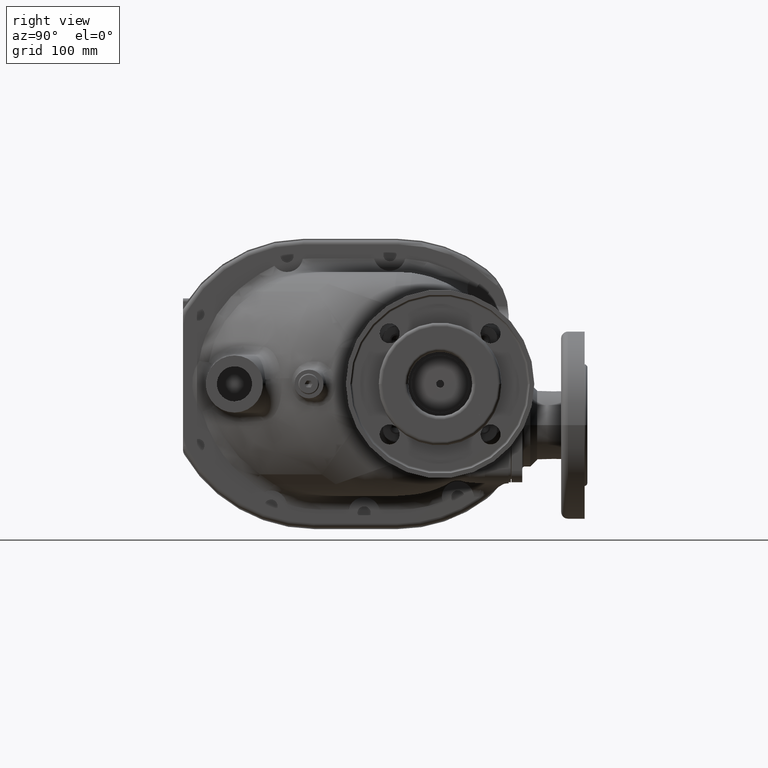
[diagram: clean part render]
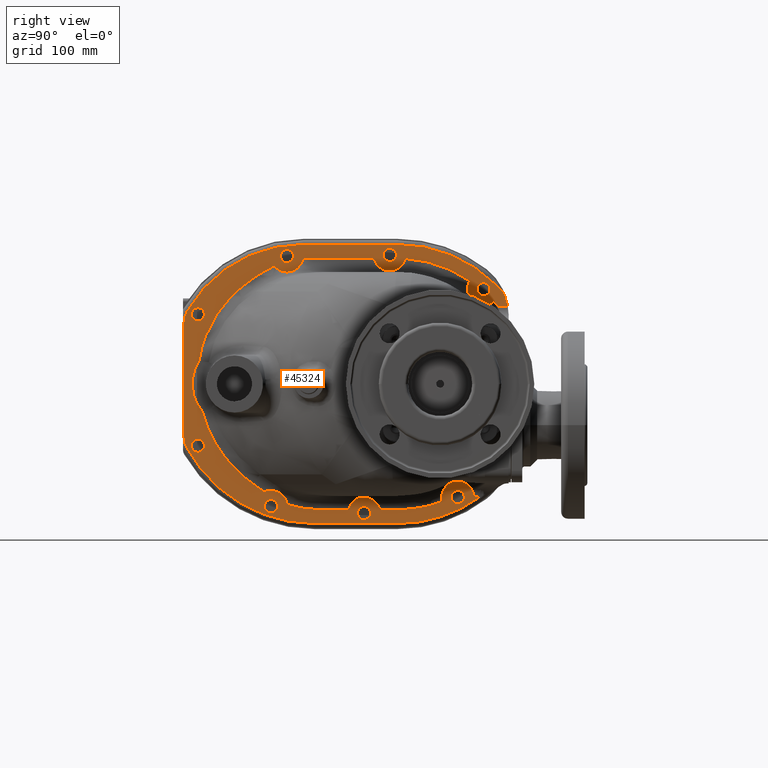
[diagram: same view with one face highlighted and labeled with its STEP entity id]
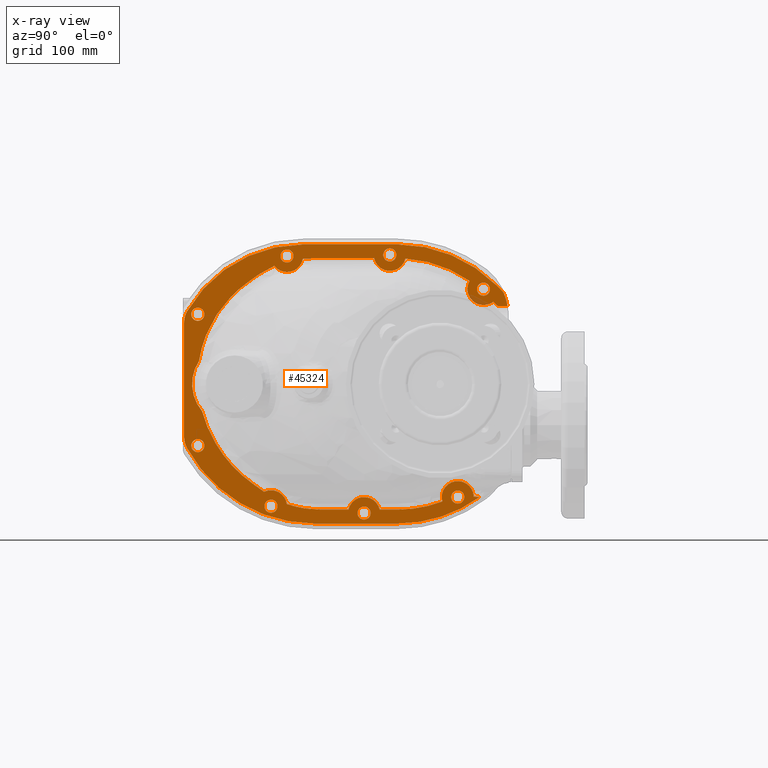
[diagram: x-ray of the same camera — body ghosted, the highlighted face saturated]
A machine part, right view. The second image highlights one B-rep face of the part: STEP entity #45324.
The next image is the same camera in x-ray: the body ghosted, the highlighted face saturated — about 1% of this face is hidden behind the body in this view.
In plain terms, the highlighted planar face has unit normal (-1, 0, 0).
Its self-contained STEP definition (entity closure, byte-faithful):
#565=CARTESIAN_POINT('',(-7.5E0,2.605E2,-1.09E2));
#566=DIRECTION('',(1.E0,0.E0,0.E0));
#567=DIRECTION('',(0.E0,9.995150691828E-1,3.113882586855E-2));
#568=AXIS2_PLACEMENT_3D('',#565,#566,#567);
#641=CARTESIAN_POINT('',(-7.5E0,2.52E2,4.824946351684E1));
#642=DIRECTION('',(-1.E0,0.E0,0.E0));
#643=DIRECTION('',(0.E0,9.053101980282E-1,4.247510392526E-1));
#644=AXIS2_PLACEMENT_3D('',#641,#642,#643);
#646=DIRECTION('',(0.E0,1.E0,-8.383138809149E-14));
#647=VECTOR('',#646,7.289235770339E0);
#648=CARTESIAN_POINT('',(-7.5E0,2.968061290742E2,5.8E1));
#649=LINE('',#648,#647);
#650=CARTESIAN_POINT('',(-7.5E0,2.946848147033E2,5.887867715788E1));
#651=CARTESIAN_POINT('',(-7.5E0,2.947215369038E2,5.884195959274E1));
#652=CARTESIAN_POINT('',(-7.5E0,2.947969013468E2,5.877042571151E1));
#653=CARTESIAN_POINT('',(-7.5E0,2.949159030242E2,5.866868146666E1));
#654=CARTESIAN_POINT('',(-7.5E0,2.950403628705E2,5.857302313117E1));
#655=CARTESIAN_POINT('',(-7.5E0,2.951699512089E2,5.848380919034E1));
#656=CARTESIAN_POINT('',(-7.5E0,2.953042625594E2,5.840141383229E1));
#657=CARTESIAN_POINT('',(-7.5E0,2.954428648791E2,5.832609705779E1));
#658=CARTESIAN_POINT('',(-7.5E0,2.955853164017E2,5.825811762193E1));
#659=CARTESIAN_POINT('',(-7.5E0,2.957311720309E2,5.819772202284E1));
#660=CARTESIAN_POINT('',(-7.5E0,2.958799622555E2,5.814509769357E1));
#661=CARTESIAN_POINT('',(-7.5E0,2.960311972411E2,5.810038761986E1));
#662=CARTESIAN_POINT('',(-7.5E0,2.961843812237E2,5.806372230608E1));
#663=CARTESIAN_POINT('',(-7.5E0,2.963390226770E2,5.803522021049E1));
#664=CARTESIAN_POINT('',(-7.5E0,2.964945608931E2,5.801488805460E1));
#665=CARTESIAN_POINT('',(-7.5E0,2.966505095656E2,5.800270693449E1));
#666=CARTESIAN_POINT('',(-7.5E0,2.967542641672E2,5.800000332396E1));
#667=CARTESIAN_POINT('',(-7.5E0,2.968061290742E2,5.8E1));
#669=DIRECTION('',(0.E0,7.071067812026E-1,-7.071067811705E-1));
#670=VECTOR('',#669,4.354109498595E0);
#671=CARTESIAN_POINT('',(-7.5E0,2.916059943507E2,6.195749751030E1));
#672=LINE('',#671,#670);
#673=CARTESIAN_POINT('',(-7.5E0,2.08E2,-1.E1));
#674=DIRECTION('',(-1.E0,0.E0,0.E0));
#675=DIRECTION('',(0.E0,6.026719967228E-2,9.981822802693E-1));
#676=AXIS2_PLACEMENT_3D('',#673,#674,#675);
#678=DIRECTION('',(0.E0,1.E0,0.E0));
#679=VECTOR('',#678,5.352367977882E1);
#680=CARTESIAN_POINT('',(-7.5E0,1.338015258900E2,1.E2));
#681=LINE('',#680,#679);
#682=CARTESIAN_POINT('',(-7.500001249023E0,1.247867443806E2,9.956572816166E1));
#683=CARTESIAN_POINT('',(-7.500002001521E0,1.253834990823E2,9.962349392321E1));
#684=CARTESIAN_POINT('',(-7.499999070109E0,1.265787724287E2,9.972751369882E1));
#685=CARTESIAN_POINT('',(-7.500000252338E0,1.283771105625E2,9.984903031643E1));
#686=CARTESIAN_POINT('',(-7.499999920539E0,1.301804500625E2,9.993601271981E1));
#687=CARTESIAN_POINT('',(-7.500000065505E0,1.319885102297E2,9.998833140881E1));
#688=CARTESIAN_POINT('',(-7.499999900129E0,1.331966996144E2,9.999999929373E1));
#689=CARTESIAN_POINT('',(-7.5E0,1.338015258900E2,1.E2));
#691=CARTESIAN_POINT('',(-7.5E0,8.680152588999E1,8.623401871576E1));
#692=CARTESIAN_POINT('',(-7.499999769050E0,8.721706141722E1,8.652784482507E1));
#693=CARTESIAN_POINT('',(-7.500000107219E0,8.806362993374E1,8.711089682195E1));
#694=CARTESIAN_POINT('',(-7.499999971158E0,8.938111581144E1,8.797079543495E1));
#695=CARTESIAN_POINT('',(-7.500000008150E0,9.074592682372E1,8.881424804455E1));
#696=CARTESIAN_POINT('',(-7.499999996242E0,9.215793135502E1,8.963976987502E1));
#697=CARTESIAN_POINT('',(-7.500000006880E0,9.361707920826E1,9.044574287931E1));
#698=CARTESIAN_POINT('',(-7.499999976236E0,9.512315082272E1,9.123062061691E1));
#699=CARTESIAN_POINT('',(-7.500000088175E0,9.667551394764E1,9.199271760760E1));
#700=CARTESIAN_POINT('',(-7.499999671066E0,9.827371265851E1,9.273033647384E1));
#701=CARTESIAN_POINT('',(-7.500000708731E0,9.936887186462E1,9.320453222904E1));
#702=CARTESIAN_POINT('',(-7.500001569578E0,9.992405085512E1,9.343709450361E1));
#704=DIRECTION('',(0.E0,8.164965809277E-1,5.773502691896E-1));
#705=VECTOR('',#704,1.180315603699E1);
#706=CARTESIAN_POINT('',(-7.5E0,7.716428934163E1,7.941946340052E1));
#707=LINE('',#706,#705);
#708=CARTESIAN_POINT('',(-7.500000043983E0,3.404119882552E1,1.026209656473E1));
#709=CARTESIAN_POINT('',(-7.499999920212E0,3.415255374576E1,1.099444632083E1));
#710=CARTESIAN_POINT('',(-7.500000037030E0,3.439131343353E1,1.245675980033E1));
#711=CARTESIAN_POINT('',(-7.499999990078E0,3.479765273544E1,1.464363266765E1));
#712=CARTESIAN_POINT('',(-7.500000002659E0,3.525189966886E1,1.682222520690E1));
#713=CARTESIAN_POINT('',(-7.499999999288E0,3.575385902976E1,1.899144663581E1));
#714=CARTESIAN_POINT('',(-7.500000000191E0,3.630331417313E1,2.115006120175E1));
#715=CARTESIAN_POINT('',(-7.499999999949E0,3.690005824715E1,2.329679924893E1));
#716=CARTESIAN_POINT('',(-7.500000000014E0,3.754388532264E1,2.543096083541E1));
#717=CARTESIAN_POINT('',(-7.499999999996E0,3.823463088500E1,2.755200379519E1));
#718=CARTESIAN_POINT('',(-7.500000000001E0,3.897213777241E1,2.965924444235E1));
#719=CARTESIAN_POINT('',(-7.5E0,3.975617179082E1,3.175173943339E1));
#720=CARTESIAN_POINT('',(-7.5E0,4.058654089373E1,3.382858477898E1));
#721=CARTESIAN_POINT('',(-7.5E0,4.146288184827E1,3.588875424601E1));
#722=CARTESIAN_POINT('',(-7.5E0,4.238477279288E1,3.793117490445E1));
#723=CARTESIAN_POINT('',(-7.5E0,4.335182520570E1,3.995482731708E1));
#724=CARTESIAN_POINT('',(-7.5E0,4.436373911524E1,4.195887094362E1));
#725=CARTESIAN_POINT('',(-7.5E0,4.542023632134E1,4.394241354128E1));
#726=CARTESIAN_POINT('',(-7.5E0,4.652094226587E1,4.590462761157E1));
#727=CARTESIAN_POINT('',(-7.5E0,4.766544410380E1,4.784469103730E1));
#728=CARTESIAN_POINT('',(-7.5E0,4.885336235149E1,4.976178189284E1));
#729=CARTESIAN_POINT('',(-7.5E0,5.008438401903E1,5.165516441657E1));
#730=CARTESIAN_POINT('',(-7.5E0,5.135824076170E1,5.352407655834E1));
#731=CARTESIAN_POINT('',(-7.5E0,5.267448838811E1,5.536768490484E1));
#732=CARTESIAN_POINT('',(-7.5E0,5.403258768537E1,5.718511445272E1));
#733=CARTESIAN_POINT('',(-7.5E0,5.543202204657E1,5.897548022839E1));
#734=CARTESIAN_POINT('',(-7.5E0,5.687231501021E1,6.073794221993E1));
#735=CARTESIAN_POINT('',(-7.5E0,5.835300877063E1,6.247163367803E1));
#736=CARTESIAN_POINT('',(-7.499999999999E0,5.987360251518E1,6.417570264861E1));
#737=CARTESIAN_POINT('',(-7.500000000002E0,6.143350439625E1,6.584937681464E1));
#738=CARTESIAN_POINT('',(-7.499999999991E0,6.303209558071E1,6.749181841843E1));
#739=CARTESIAN_POINT('',(-7.500000000035E0,6.466892534145E1,6.910235455752E1));
#740=CARTESIAN_POINT('',(-7.499999999871E0,6.634370459193E1,7.068043415302E1));
#741=CARTESIAN_POINT('',(-7.500000000481E0,6.805618970931E1,7.222545085397E1));
#742=CARTESIAN_POINT('',(-7.499999998207E0,6.980573676917E1,7.373662833953E1));
#743=CARTESIAN_POINT('',(-7.500000006693E0,7.159155272849E1,7.521312480952E1));
#744=CARTESIAN_POINT('',(-7.499999975021E0,7.341283979956E1,7.665406699229E1));
#745=CARTESIAN_POINT('',(-7.500000093223E0,7.526891008142E1,7.805864880576E1));
#746=CARTESIAN_POINT('',(-7.499999799133E0,7.652869459305E1,7.897001893988E1));
#747=CARTESIAN_POINT('',(-7.5E0,7.716428934163E1,7.941946340052E1));
#749=CARTESIAN_POINT('',(-7.5E0,6.5E1,-1.E1));
#750=DIRECTION('',(-1.E0,0.E0,0.E0));
#751=DIRECTION('',(0.E0,-7.657252250524E-1,-6.431678472362E-1));
#752=AXIS2_PLACEMENT_3D('',#749,#750,#751);
#754=CARTESIAN_POINT('',(-7.5E0,8.139078664974E1,-9.758442920979E1));
#755=CARTESIAN_POINT('',(-7.499999807360E0,8.071779659205E1,-9.710854353100E1));
#756=CARTESIAN_POINT('',(-7.500000089404E0,7.938336360703E1,-9.614385106179E1));
#757=CARTESIAN_POINT('',(-7.499999976044E0,7.741574564495E1,-9.465792645465E1));
#758=CARTESIAN_POINT('',(-7.500000006419E0,7.548340991620E1,-9.313430230436E1));
#759=CARTESIAN_POINT('',(-7.499999998280E0,7.358709919754E1,-9.157379737607E1));
#760=CARTESIAN_POINT('',(-7.500000000461E0,7.172766104714E1,-8.997730131711E1));
#761=CARTESIAN_POINT('',(-7.499999999877E0,6.990596992908E1,-8.834569773605E1));
#762=CARTESIAN_POINT('',(-7.500000000033E0,6.812255939487E1,-8.667970140554E1));
#763=CARTESIAN_POINT('',(-7.499999999991E0,6.637764115573E1,-8.497983647414E1));
#764=CARTESIAN_POINT('',(-7.500000000002E0,6.467149675618E1,-8.324659347613E1));
#765=CARTESIAN_POINT('',(-7.499999999999E0,6.300471131668E1,-8.148074220872E1));
#766=CARTESIAN_POINT('',(-7.5E0,6.137790017729E1,-7.968306231474E1));
#767=CARTESIAN_POINT('',(-7.5E0,5.979167129408E1,-7.785437662730E1));
#768=CARTESIAN_POINT('',(-7.5E0,5.824663647802E1,-7.599568500683E1));
#769=CARTESIAN_POINT('',(-7.5E0,5.674342561274E1,-7.410799142175E1));
#770=CARTESIAN_POINT('',(-7.5E0,5.528248297537E1,-7.219206977179E1));
#771=CARTESIAN_POINT('',(-7.5E0,5.386417382900E1,-7.024854568047E1));
#772=CARTESIAN_POINT('',(-7.5E0,5.248890285528E1,-6.827805096936E1));
#773=CARTESIAN_POINT('',(-7.5E0,5.115706208580E1,-6.628144967581E1));
#774=CARTESIAN_POINT('',(-7.5E0,4.986904742437E1,-6.425957860103E1));
#775=CARTESIAN_POINT('',(-7.5E0,4.862528719004E1,-6.221329314570E1));
#776=CARTESIAN_POINT('',(-7.5E0,4.742626663401E1,-6.014353358104E1));
#777=CARTESIAN_POINT('',(-7.5E0,4.627247754931E1,-5.805120397206E1));
#778=CARTESIAN_POINT('',(-7.499999999999E0,4.516433687625E1,-5.593726205081E1));
#779=CARTESIAN_POINT('',(-7.500000000002E0,4.410218913667E1,-5.380268799253E1));
#780=CARTESIAN_POINT('',(-7.499999999992E0,4.308641377455E1,-5.164849490034E1));
#781=CARTESIAN_POINT('',(-7.500000000028E0,4.211724451100E1,-4.947537446129E1));
#782=CARTESIAN_POINT('',(-7.499999999895E0,4.119488862206E1,-4.728388758525E1));
#783=CARTESIAN_POINT('',(-7.500000000393E0,4.031959726079E1,-4.507454695423E1));
#784=CARTESIAN_POINT('',(-7.499999998535E0,3.949167442602E1,-4.284842603003E1));
#785=CARTESIAN_POINT('',(-7.500000005469E0,3.871143128569E1,-4.060668012182E1));
#786=CARTESIAN_POINT('',(-7.499999979589E0,3.797919391642E1,-3.835047187535E1));
#787=CARTESIAN_POINT('',(-7.500000076173E0,3.729525415899E1,-3.608081553987E1));
#788=CARTESIAN_POINT('',(-7.499999835869E0,3.687179139588E1,-3.455978984623E1));
#789=CARTESIAN_POINT('',(-7.500000049433E0,3.666816657147E1,-3.379720904162E1));
#791=DIRECTION('',(0.E0,-8.164965809277E-1,5.773502691896E-1));
#792=VECTOR('',#791,1.173954736024E1);
#793=CARTESIAN_POINT('',(-7.5E0,9.097608693101E1,-1.043622600384E2));
#794=LINE('',#793,#792);
#795=CARTESIAN_POINT('',(-7.5E0,1.406231534380E2,-1.2E2));
#796=CARTESIAN_POINT('',(-7.499999925273E0,1.399212001907E2,-1.199999994282E2));
#797=CARTESIAN_POINT('',(-7.500000034681E0,1.385187761683E2,-1.199842900662E2));
#798=CARTESIAN_POINT('',(-7.499999990707E0,1.364181458024E2,-1.199136964253E2));
#799=CARTESIAN_POINT('',(-7.500000002490E0,1.343248463466E2,-1.197963652467E2));
#800=CARTESIAN_POINT('',(-7.499999999333E0,1.322415819330E2,-1.196326643582E2));
#801=CARTESIAN_POINT('',(-7.500000000179E0,1.301713362231E2,-1.194231290881E2));
#802=CARTESIAN_POINT('',(-7.499999999951E0,1.281173982498E2,-1.191684448800E2));
#803=CARTESIAN_POINT('',(-7.500000000018E0,1.260834077654E2,-1.188695354572E2));
#804=CARTESIAN_POINT('',(-7.499999999977E0,1.240723916711E2,-1.185274216413E2));
#805=CARTESIAN_POINT('',(-7.500000000074E0,1.220868511134E2,-1.181431656360E2));
#806=CARTESIAN_POINT('',(-7.499999999726E0,1.201294880941E2,-1.177180046236E2));
#807=CARTESIAN_POINT('',(-7.500000001022E0,1.182032276926E2,-1.172533525157E2));
#808=CARTESIAN_POINT('',(-7.499999996185E0,1.163105521830E2,-1.167507237960E2));
#809=CARTESIAN_POINT('',(-7.500000014238E0,1.144534337139E2,-1.162115663449E2));
#810=CARTESIAN_POINT('',(-7.499999946863E0,1.126335401983E2,-1.156374018692E2));
#811=CARTESIAN_POINT('',(-7.500000114494E0,1.114468655588E2,-1.152325416170E2));
#812=CARTESIAN_POINT('',(-7.499999995635E0,1.108599498873E2,-1.150247053074E2));
#814=DIRECTION('',(0.E0,-1.E0,0.E0));
#815=VECTOR('',#814,2.420205223078E1);
#816=CARTESIAN_POINT('',(-7.5E0,1.648252056688E2,-1.2E2));
#817=LINE('',#816,#815);
#818=DIRECTION('',(0.E0,-1.E0,-2.155172705507E-14));
#819=VECTOR('',#818,1.582520566882E1);
#820=CARTESIAN_POINT('',(-7.5E0,2.08E2,-1.2E2));
#821=LINE('',#820,#819);
#822=CARTESIAN_POINT('',(-7.5E0,2.08E2,-1.E1));
#823=DIRECTION('',(-1.E0,0.E0,0.E0));
#824=DIRECTION('',(0.E0,3.548817344565E-1,-9.349112014246E-1));
#825=AXIS2_PLACEMENT_3D('',#822,#823,#824);
#827=DIRECTION('',(0.E0,-9.961946980918E-1,8.715574274738E-2));
#828=VECTOR('',#827,1.118658177640E-1);
#829=CARTESIAN_POINT('',(-7.5E0,2.746046511031E2,-1.085738061863E2));
#830=LINE('',#829,#828);
#831=CARTESIAN_POINT('',(-7.5E0,2.843660942909E2,3.E0));
#832=DIRECTION('',(-1.E0,0.E0,0.E0));
#833=DIRECTION('',(0.E0,-4.181605399637E-2,-9.991253262870E-1));
#834=AXIS2_PLACEMENT_3D('',#831,#832,#833);
#836=CARTESIAN_POINT('',(-7.5E0,2.08E2,-1.E1));
#837=DIRECTION('',(1.E0,0.E0,0.E0));
#838=DIRECTION('',(0.E0,0.E0,-1.E0));
#839=AXIS2_PLACEMENT_3D('',#836,#837,#838);
#841=DIRECTION('',(0.E0,1.E0,0.E0));
#842=VECTOR('',#841,7.3E1);
#843=CARTESIAN_POINT('',(-7.5E0,1.35E2,-1.32147541E2));
#844=LINE('',#843,#842);
#845=CARTESIAN_POINT('',(-7.5E0,1.35E2,-5.E0));
#846=DIRECTION('',(1.E0,0.E0,0.E0));
#847=DIRECTION('',(0.E0,-8.773584905660E-1,-4.798354707936E-1));
#848=AXIS2_PLACEMENT_3D('',#845,#846,#847);
#850=CARTESIAN_POINT('',(-7.5E0,4.2E1,-5.586255990412E1));
#851=DIRECTION('',(1.E0,0.E0,0.E0));
#852=DIRECTION('',(0.E0,-1.E0,0.E0));
#853=AXIS2_PLACEMENT_3D('',#850,#851,#852);
#855=DIRECTION('',(0.E0,0.E0,-1.E0));
#856=VECTOR('',#855,9.910154828489E1);
#857=CARTESIAN_POINT('',(-7.5E0,2.0852459E1,4.323898838077E1));
#858=LINE('',#857,#856);
#859=CARTESIAN_POINT('',(-7.5E0,4.2E1,4.323898838077E1));
#860=DIRECTION('',(1.E0,0.E0,0.E0));
#861=DIRECTION('',(0.E0,-8.645833333333E-1,5.024894622997E-1));
#862=AXIS2_PLACEMENT_3D('',#859,#860,#861);
#864=CARTESIAN_POINT('',(-7.5E0,1.25E2,-5.E0));
#865=DIRECTION('',(1.E0,0.E0,0.E0));
#866=DIRECTION('',(0.E0,0.E0,1.E0));
#867=AXIS2_PLACEMENT_3D('',#864,#865,#866);
#869=DIRECTION('',(0.E0,-1.E0,0.E0));
#870=VECTOR('',#869,8.3E1);
#871=CARTESIAN_POINT('',(-7.5E0,2.08E2,1.12147541E2));
#872=LINE('',#871,#870);
#873=CARTESIAN_POINT('',(-7.5E0,2.08E2,-1.E1));
#874=DIRECTION('',(1.E0,0.E0,0.E0));
#875=DIRECTION('',(0.E0,7.071067811866E-1,7.071067811865E-1));
#876=AXIS2_PLACEMENT_3D('',#873,#874,#875);
#878=DIRECTION('',(0.E0,-7.071067811865E-1,7.071067811866E-1));
#879=VECTOR('',#878,7.933859635342E0);
#880=CARTESIAN_POINT('',(-7.5E0,2.999814404955E2,7.076126859723E1));
#881=LINE('',#880,#879);
#882=CARTESIAN_POINT('',(-7.5E0,3.3E1,-6.4E1));
#883=DIRECTION('',(-1.E0,0.E0,0.E0));
#884=DIRECTION('',(0.E0,0.E0,-1.E0));
#885=AXIS2_PLACEMENT_3D('',#882,#883,#884);
#887=CARTESIAN_POINT('',(-7.5E0,3.3E1,-6.4E1));
#888=DIRECTION('',(-1.E0,0.E0,0.E0));
#889=DIRECTION('',(0.E0,0.E0,1.E0));
#890=AXIS2_PLACEMENT_3D('',#887,#888,#889);
#892=CARTESIAN_POINT('',(-7.5E0,2.83E2,7.3E1));
#893=DIRECTION('',(1.E0,0.E0,0.E0));
#894=DIRECTION('',(0.E0,0.E0,1.E0));
#895=AXIS2_PLACEMENT_3D('',#892,#893,#894);
#897=CARTESIAN_POINT('',(-7.5E0,2.83E2,7.3E1));
#898=DIRECTION('',(1.E0,0.E0,0.E0));
#899=DIRECTION('',(0.E0,0.E0,-1.E0));
#900=AXIS2_PLACEMENT_3D('',#897,#898,#899);
#902=CARTESIAN_POINT('',(-7.5E0,2.01E2,1.03E2));
#903=DIRECTION('',(1.E0,0.E0,0.E0));
#904=DIRECTION('',(0.E0,0.E0,1.E0));
#905=AXIS2_PLACEMENT_3D('',#902,#903,#904);
#907=CARTESIAN_POINT('',(-7.5E0,2.01E2,1.03E2));
#908=DIRECTION('',(1.E0,0.E0,0.E0));
#909=DIRECTION('',(0.E0,0.E0,-1.E0));
#910=AXIS2_PLACEMENT_3D('',#907,#908,#909);
#912=CARTESIAN_POINT('',(-7.5E0,1.11E2,1.02E2));
#913=DIRECTION('',(1.E0,0.E0,0.E0));
#914=DIRECTION('',(0.E0,0.E0,1.E0));
#915=AXIS2_PLACEMENT_3D('',#912,#913,#914);
#917=CARTESIAN_POINT('',(-7.5E0,1.11E2,1.02E2));
#918=DIRECTION('',(1.E0,0.E0,0.E0));
#919=DIRECTION('',(0.E0,0.E0,-1.E0));
#920=AXIS2_PLACEMENT_3D('',#917,#918,#919);
#922=CARTESIAN_POINT('',(-7.5E0,3.3E1,5.1E1));
#923=DIRECTION('',(-1.E0,0.E0,0.E0));
#924=DIRECTION('',(0.E0,0.E0,-1.E0));
#925=AXIS2_PLACEMENT_3D('',#922,#923,#924);
#927=CARTESIAN_POINT('',(-7.5E0,3.3E1,5.1E1));
#928=DIRECTION('',(-1.E0,0.E0,0.E0));
#929=DIRECTION('',(0.E0,0.E0,1.E0));
#930=AXIS2_PLACEMENT_3D('',#927,#928,#929);
#932=CARTESIAN_POINT('',(-7.5E0,9.7E1,-1.17E2));
#933=DIRECTION('',(-1.E0,0.E0,0.E0));
#934=DIRECTION('',(0.E0,0.E0,-1.E0));
#935=AXIS2_PLACEMENT_3D('',#932,#933,#934);
#937=CARTESIAN_POINT('',(-7.5E0,9.7E1,-1.17E2));
#938=DIRECTION('',(-1.E0,0.E0,0.E0));
#939=DIRECTION('',(0.E0,0.E0,1.E0));
#940=AXIS2_PLACEMENT_3D('',#937,#938,#939);
#942=CARTESIAN_POINT('',(-7.5E0,1.785E2,-1.23E2));
#943=DIRECTION('',(1.E0,0.E0,0.E0));
#944=DIRECTION('',(0.E0,0.E0,-1.E0));
#945=AXIS2_PLACEMENT_3D('',#942,#943,#944);
#947=CARTESIAN_POINT('',(-7.5E0,1.785E2,-1.23E2));
#948=DIRECTION('',(1.E0,0.E0,0.E0));
#949=DIRECTION('',(0.E0,0.E0,1.E0));
#950=AXIS2_PLACEMENT_3D('',#947,#948,#949);
#952=CARTESIAN_POINT('',(-7.5E0,2.605E2,-1.09E2));
#953=DIRECTION('',(1.E0,0.E0,0.E0));
#954=DIRECTION('',(0.E0,0.E0,-1.E0));
#955=AXIS2_PLACEMENT_3D('',#952,#953,#954);
#957=CARTESIAN_POINT('',(-7.5E0,2.605E2,-1.09E2));
#958=DIRECTION('',(1.E0,0.E0,0.E0));
#959=DIRECTION('',(0.E0,0.E0,1.E0));
#960=AXIS2_PLACEMENT_3D('',#957,#958,#959);
#990=CARTESIAN_POINT('',(-7.5E0,3.040953648446E2,5.8E1));
#1848=CARTESIAN_POINT('',(-7.5E0,1.785E2,-1.23E2));
#1849=DIRECTION('',(1.E0,0.E0,0.E0));
#1850=DIRECTION('',(0.E0,9.767710236555E-1,2.142857142857E-1));
#1851=AXIS2_PLACEMENT_3D('',#1848,#1849,#1850);
#1912=CARTESIAN_POINT('',(-7.5E0,9.7E1,-1.17E2));
#1913=DIRECTION('',(1.E0,0.E0,0.E0));
#1914=DIRECTION('',(0.E0,9.899964204041E-1,1.410924788467E-1));
#1915=AXIS2_PLACEMENT_3D('',#1912,#1913,#1914);
#3805=CARTESIAN_POINT('',(-7.5E0,1.11E2,1.02E2));
#3806=DIRECTION('',(1.E0,0.E0,0.E0));
#3807=DIRECTION('',(0.E0,-7.911393769820E-1,-6.116359098259E-1));
#3808=AXIS2_PLACEMENT_3D('',#3805,#3806,#3807);
#3897=CARTESIAN_POINT('',(-7.5E0,2.01E2,1.03E2));
#3898=DIRECTION('',(1.E0,0.E0,0.E0));
#3899=DIRECTION('',(0.E0,-9.767710236555E-1,-2.142857142857E-1));
#3900=AXIS2_PLACEMENT_3D('',#3897,#3898,#3899);
#3971=CARTESIAN_POINT('',(-7.5E0,2.146293919640E2,9.980005082963E1));
#4031=CARTESIAN_POINT('',(-7.5E0,2.709835042194E2,8.018358052466E1));
#4038=CARTESIAN_POINT('',(-7.5E0,2.83E2,7.3E1));
#4039=DIRECTION('',(1.E0,0.E0,0.E0));
#4040=DIRECTION('',(0.E0,-8.583211271874E-1,5.131128946185E-1));
#4041=AXIS2_PLACEMENT_3D('',#4038,#4039,#4040);
#26375=CARTESIAN_POINT('',(-7.5E0,2.999814404955E2,7.076126859723E1));
#42161=CARTESIAN_POINT('',(-7.5E0,3.3E1,-6.975E1));
#42162=CARTESIAN_POINT('',(-7.5E0,3.3E1,-5.825E1));
#42163=VERTEX_POINT('',#42161);
#42164=VERTEX_POINT('',#42162);
#42179=CARTESIAN_POINT('',(-7.5E0,2.08E2,-1.2E2));
#42180=VERTEX_POINT('',#42179);
#42331=VERTEX_POINT('',#3971);
#42333=CARTESIAN_POINT('',(-7.5E0,1.338015258900E2,1.E2));
#42334=CARTESIAN_POINT('',(-7.5E0,1.873252056688E2,1.E2));
#42335=VERTEX_POINT('',#42333);
#42336=VERTEX_POINT('',#42334);
#42337=CARTESIAN_POINT('',(-7.5E0,9.992404872225E1,9.343709726244E1));
#42338=CARTESIAN_POINT('',(-7.5E0,1.247867448650E2,9.956573090470E1));
#42339=VERTEX_POINT('',#42337);
#42340=VERTEX_POINT('',#42338);
#42341=CARTESIAN_POINT('',(-7.5E0,1.108599498857E2,-1.150247052961E2));
#42342=CARTESIAN_POINT('',(-7.5E0,9.097608693101E1,-1.043622600384E2));
#42343=VERTEX_POINT('',#42341);
#42344=VERTEX_POINT('',#42342);
#42345=CARTESIAN_POINT('',(-7.5E0,1.921747943312E2,-1.2E2));
#42346=VERTEX_POINT('',#42345);
#42347=CARTESIAN_POINT('',(-7.5E0,1.648252056688E2,-1.2E2));
#42348=CARTESIAN_POINT('',(-7.5E0,1.406231534380E2,-1.2E2));
#42349=VERTEX_POINT('',#42347);
#42350=VERTEX_POINT('',#42348);
#42351=CARTESIAN_POINT('',(-7.5E0,2.744932109686E2,-1.085640564378E2));
#42352=CARTESIAN_POINT('',(-7.5E0,2.470369907902E2,-1.128402321567E2));
#42353=VERTEX_POINT('',#42351);
#42354=VERTEX_POINT('',#42352);
#42356=VERTEX_POINT('',#4031);
#42357=CARTESIAN_POINT('',(-7.5E0,2.916059943507E2,6.195749751030E1));
#42358=CARTESIAN_POINT('',(-7.5E0,2.946848147033E2,5.887867715788E1));
#42359=VERTEX_POINT('',#42357);
#42360=VERTEX_POINT('',#42358);
#42512=CARTESIAN_POINT('',(-7.5E0,1.35E2,-1.32147541E2));
#42513=CARTESIAN_POINT('',(-7.5E0,2.08E2,-1.32147541E2));
#42514=VERTEX_POINT('',#42512);
#42515=VERTEX_POINT('',#42513);
#42520=CARTESIAN_POINT('',(-7.5E0,2.344602534906E1,-6.600990019598E1));
#42521=VERTEX_POINT('',#42520);
#42524=CARTESIAN_POINT('',(-7.5E0,2.08E2,1.12147541E2));
#42525=CARTESIAN_POINT('',(-7.5E0,1.25E2,1.12147541E2));
#42526=VERTEX_POINT('',#42524);
#42527=VERTEX_POINT('',#42525);
#42532=CARTESIAN_POINT('',(-7.5E0,2.943713545464E2,7.637135454636E1));
#42533=VERTEX_POINT('',#42532);
#42534=CARTESIAN_POINT('',(-7.5E0,2.796826962398E2,-1.089020365395E2));
#42535=VERTEX_POINT('',#42534);
#42571=VERTEX_POINT('',#26375);
#42701=VERTEX_POINT('',#667);
#42702=CARTESIAN_POINT('',(-7.5E0,7.716428934163E1,7.941946340052E1));
#42703=CARTESIAN_POINT('',(-7.5E0,8.680152588999E1,8.623401871576E1));
#42704=VERTEX_POINT('',#42702);
#42705=VERTEX_POINT('',#42703);
#42706=VERTEX_POINT('',#708);
#42707=CARTESIAN_POINT('',(-7.5E0,3.666816667306E1,-3.379721034774E1));
#42708=VERTEX_POINT('',#42707);
#42709=VERTEX_POINT('',#754);
#42712=CARTESIAN_POINT('',(-7.5E0,2.746046511031E2,-1.085738061863E2));
#42713=VERTEX_POINT('',#42712);
#42967=CARTESIAN_POINT('',(-7.5E0,2.83E2,7.875E1));
#42968=CARTESIAN_POINT('',(-7.5E0,2.83E2,6.725E1));
#42969=VERTEX_POINT('',#42967);
#42970=VERTEX_POINT('',#42968);
#42971=CARTESIAN_POINT('',(-7.5E0,2.01E2,1.0875E2));
#42972=CARTESIAN_POINT('',(-7.5E0,2.01E2,9.725E1));
#42973=VERTEX_POINT('',#42971);
#42974=VERTEX_POINT('',#42972);
#42975=CARTESIAN_POINT('',(-7.5E0,1.11E2,1.0775E2));
#42976=CARTESIAN_POINT('',(-7.5E0,1.11E2,9.625E1));
#42977=VERTEX_POINT('',#42975);
#42978=VERTEX_POINT('',#42976);
#42979=CARTESIAN_POINT('',(-7.5E0,3.3E1,4.525E1));
#42980=CARTESIAN_POINT('',(-7.5E0,3.3E1,5.675E1));
#42981=VERTEX_POINT('',#42979);
#42982=VERTEX_POINT('',#42980);
#42983=CARTESIAN_POINT('',(-7.5E0,9.7E1,-1.2275E2));
#42984=CARTESIAN_POINT('',(-7.5E0,9.7E1,-1.1125E2));
#42985=VERTEX_POINT('',#42983);
#42986=VERTEX_POINT('',#42984);
#42988=CARTESIAN_POINT('',(-7.5E0,1.785E2,-1.2875E2));
#42989=CARTESIAN_POINT('',(-7.5E0,1.785E2,-1.1725E2));
#42990=VERTEX_POINT('',#42988);
#42991=VERTEX_POINT('',#42989);
#42996=CARTESIAN_POINT('',(-7.5E0,2.605E2,-1.1475E2));
#42997=CARTESIAN_POINT('',(-7.5E0,2.605E2,-1.0325E2));
#42998=VERTEX_POINT('',#42996);
#42999=VERTEX_POINT('',#42997);
#43008=VERTEX_POINT('',#990);
#43009=CARTESIAN_POINT('',(-7.5E0,2.0852459E1,-5.586255990412E1));
#43010=VERTEX_POINT('',#43009);
#43011=CARTESIAN_POINT('',(-7.5E0,2.0852459E1,4.323898838077E1));
#43012=VERTEX_POINT('',#43011);
#43013=CARTESIAN_POINT('',(-7.5E0,2.371618851042E1,5.386540488682E1));
#43014=VERTEX_POINT('',#43013);
#45203=CARTESIAN_POINT('',(-7.5E0,1.3E2,0.E0));
#45204=DIRECTION('',(-1.E0,0.E0,0.E0));
#45205=DIRECTION('',(0.E0,0.E0,1.E0));
#45206=AXIS2_PLACEMENT_3D('',#45203,#45204,#45205);
#45207=PLANE('',#45206);
#45208=ORIENTED_EDGE('',*,*,#44670,.T.);
#45210=ORIENTED_EDGE('',*,*,#45209,.F.);
#45212=ORIENTED_EDGE('',*,*,#45211,.F.);
#45214=ORIENTED_EDGE('',*,*,#45213,.F.);
#45216=ORIENTED_EDGE('',*,*,#45215,.F.);
#45218=ORIENTED_EDGE('',*,*,#45217,.F.);
#45220=ORIENTED_EDGE('',*,*,#45219,.F.);
#45222=ORIENTED_EDGE('',*,*,#45221,.F.);
#45224=ORIENTED_EDGE('',*,*,#45223,.F.);
#45226=ORIENTED_EDGE('',*,*,#45225,.F.);
#45228=ORIENTED_EDGE('',*,*,#45227,.F.);
#45230=ORIENTED_EDGE('',*,*,#45229,.F.);
#45232=ORIENTED_EDGE('',*,*,#45231,.F.);
#45234=ORIENTED_EDGE('',*,*,#45233,.F.);
#45236=ORIENTED_EDGE('',*,*,#45235,.F.);
#45238=ORIENTED_EDGE('',*,*,#45237,.F.);
#45240=ORIENTED_EDGE('',*,*,#45239,.F.);
#45242=ORIENTED_EDGE('',*,*,#45241,.F.);
#45244=ORIENTED_EDGE('',*,*,#45243,.F.);
#45246=ORIENTED_EDGE('',*,*,#45245,.F.);
#45248=ORIENTED_EDGE('',*,*,#45247,.F.);
#45249=ORIENTED_EDGE('',*,*,#45193,.F.);
#45250=ORIENTED_EDGE('',*,*,#45137,.F.);
#45251=ORIENTED_EDGE('',*,*,#45122,.F.);
#45253=ORIENTED_EDGE('',*,*,#45252,.F.);
#45255=ORIENTED_EDGE('',*,*,#45254,.F.);
#45257=ORIENTED_EDGE('',*,*,#45256,.F.);
#45259=ORIENTED_EDGE('',*,*,#45258,.F.);
#45261=ORIENTED_EDGE('',*,*,#45260,.F.);
#45263=ORIENTED_EDGE('',*,*,#45262,.F.);
#45265=ORIENTED_EDGE('',*,*,#45264,.F.);
#45267=ORIENTED_EDGE('',*,*,#45266,.F.);
#45269=ORIENTED_EDGE('',*,*,#45268,.F.);
#45271=ORIENTED_EDGE('',*,*,#45270,.F.);
#45273=ORIENTED_EDGE('',*,*,#45272,.F.);
#45274=EDGE_LOOP('',(#45208,#45210,#45212,#45214,#45216,#45218,#45220,#45222,
#45224,#45226,#45228,#45230,#45232,#45234,#45236,#45238,#45240,#45242,#45244,
#45246,#45248,#45249,#45250,#45251,#45253,#45255,#45257,#45259,#45261,#45263,
#45265,#45267,#45269,#45271,#45273));
#45275=FACE_OUTER_BOUND('',#45274,.F.);
#45277=ORIENTED_EDGE('',*,*,#45276,.F.);
#45279=ORIENTED_EDGE('',*,*,#45278,.F.);
#45280=EDGE_LOOP('',(#45277,#45279));
#45281=FACE_BOUND('',#45280,.F.);
#45283=ORIENTED_EDGE('',*,*,#45282,.T.);
#45285=ORIENTED_EDGE('',*,*,#45284,.T.);
#45286=EDGE_LOOP('',(#45283,#45285));
#45287=FACE_BOUND('',#45286,.F.);
#45289=ORIENTED_EDGE('',*,*,#45288,.T.);
#45291=ORIENTED_EDGE('',*,*,#45290,.T.);
#45292=EDGE_LOOP('',(#45289,#45291));
#45293=FACE_BOUND('',#45292,.F.);
#45295=ORIENTED_EDGE('',*,*,#45294,.T.);
#45297=ORIENTED_EDGE('',*,*,#45296,.T.);
#45298=EDGE_LOOP('',(#45295,#45297));
#45299=FACE_BOUND('',#45298,.F.);
#45301=ORIENTED_EDGE('',*,*,#45300,.F.);
#45303=ORIENTED_EDGE('',*,*,#45302,.F.);
#45304=EDGE_LOOP('',(#45301,#45303));
#45305=FACE_BOUND('',#45304,.F.);
#45307=ORIENTED_EDGE('',*,*,#45306,.F.);
#45309=ORIENTED_EDGE('',*,*,#45308,.F.);
#45310=EDGE_LOOP('',(#45307,#45309));
#45311=FACE_BOUND('',#45310,.F.);
#45313=ORIENTED_EDGE('',*,*,#45312,.T.);
#45315=ORIENTED_EDGE('',*,*,#45314,.T.);
#45316=EDGE_LOOP('',(#45313,#45315));
#45317=FACE_BOUND('',#45316,.F.);
#45319=ORIENTED_EDGE('',*,*,#45318,.T.);
#45321=ORIENTED_EDGE('',*,*,#45320,.T.);
#45322=EDGE_LOOP('',(#45319,#45321));
#45323=FACE_BOUND('',#45322,.F.);
#45324=ADVANCED_FACE('',(#45275,#45281,#45287,#45293,#45299,#45305,#45311,
#45317,#45323),#45207,.F.);
#569=CIRCLE('',#568,1.4E1);
#645=CIRCLE('',#644,5.3E1);
#668=B_SPLINE_CURVE_WITH_KNOTS('',3,(#650,#651,#652,#653,#654,#655,#656,#657,
#658,#659,#660,#661,#662,#663,#664,#665,#666,#667),.UNSPECIFIED.,.F.,.F.,(4,1,1,
1,1,1,1,1,1,1,1,1,1,1,1,4),(0.E0,6.666666666667E-2,1.333333333333E-1,2.E-1,
2.666666666667E-1,3.333333333333E-1,4.E-1,4.666666666667E-1,5.333333333333E-1,
6.E-1,6.666666666667E-1,7.333333333333E-1,8.E-1,8.666666666667E-1,
9.333333333333E-1,1.E0),.UNSPECIFIED.);
#677=CIRCLE('',#676,1.1E2);
#690=B_SPLINE_CURVE_WITH_KNOTS('',3,(#682,#683,#684,#685,#686,#687,#688,#689),
.UNSPECIFIED.,.F.,.F.,(4,1,1,1,1,4),(0.E0,2.E-1,4.E-1,6.E-1,8.E-1,1.E0),
.UNSPECIFIED.);
#703=B_SPLINE_CURVE_WITH_KNOTS('',3,(#691,#692,#693,#694,#695,#696,#697,#698,
#699,#700,#701,#702),.UNSPECIFIED.,.F.,.F.,(4,1,1,1,1,1,1,1,1,4),(0.E0,
1.111111111111E-1,2.222222222222E-1,3.333333333333E-1,4.444444444444E-1,
5.555555555556E-1,6.666666666667E-1,7.777777777778E-1,8.888888888889E-1,1.E0),
.UNSPECIFIED.);
#748=B_SPLINE_CURVE_WITH_KNOTS('',3,(#708,#709,#710,#711,#712,#713,#714,#715,
#716,#717,#718,#719,#720,#721,#722,#723,#724,#725,#726,#727,#728,#729,#730,#731,
#732,#733,#734,#735,#736,#737,#738,#739,#740,#741,#742,#743,#744,#745,#746,
#747),.UNSPECIFIED.,.F.,.F.,(4,1,1,1,1,1,1,1,1,1,1,1,1,1,1,1,1,1,1,1,1,1,1,1,1,
1,1,1,1,1,1,1,1,1,1,1,1,4),(0.E0,2.702702702703E-2,5.405405405405E-2,
8.108108108108E-2,1.081081081081E-1,1.351351351351E-1,1.621621621622E-1,
1.891891891892E-1,2.162162162162E-1,2.432432432432E-1,2.702702702703E-1,
2.972972972973E-1,3.243243243243E-1,3.513513513514E-1,3.783783783784E-1,
4.054054054054E-1,4.324324324324E-1,4.594594594595E-1,4.864864864865E-1,
5.135135135135E-1,5.405405405405E-1,5.675675675676E-1,5.945945945946E-1,
6.216216216216E-1,6.486486486486E-1,6.756756756757E-1,7.027027027027E-1,
7.297297297297E-1,7.567567567568E-1,7.837837837838E-1,8.108108108108E-1,
8.378378378378E-1,8.648648648649E-1,8.918918918919E-1,9.189189189189E-1,
9.459459459459E-1,9.729729729730E-1,1.E0),.UNSPECIFIED.);
#753=CIRCLE('',#752,3.7E1);
#790=B_SPLINE_CURVE_WITH_KNOTS('',3,(#754,#755,#756,#757,#758,#759,#760,#761,
#762,#763,#764,#765,#766,#767,#768,#769,#770,#771,#772,#773,#774,#775,#776,#777,
#778,#779,#780,#781,#782,#783,#784,#785,#786,#787,#788,#789),.UNSPECIFIED.,.F.,
.F.,(4,1,1,1,1,1,1,1,1,1,1,1,1,1,1,1,1,1,1,1,1,1,1,1,1,1,1,1,1,1,1,1,1,4),(0.E0,
3.030303030303E-2,6.060606060606E-2,9.090909090909E-2,1.212121212121E-1,
1.515151515152E-1,1.818181818182E-1,2.121212121212E-1,2.424242424242E-1,
2.727272727273E-1,3.030303030303E-1,3.333333333333E-1,3.636363636364E-1,
3.939393939394E-1,4.242424242424E-1,4.545454545455E-1,4.848484848485E-1,
5.151515151515E-1,5.454545454545E-1,5.757575757576E-1,6.060606060606E-1,
6.363636363636E-1,6.666666666667E-1,6.969696969697E-1,7.272727272727E-1,
7.575757575758E-1,7.878787878788E-1,8.181818181818E-1,8.484848484848E-1,
8.787878787879E-1,9.090909090909E-1,9.393939393939E-1,9.696969696970E-1,1.E0),
.UNSPECIFIED.);
#813=B_SPLINE_CURVE_WITH_KNOTS('',3,(#795,#796,#797,#798,#799,#800,#801,#802,
#803,#804,#805,#806,#807,#808,#809,#810,#811,#812),.UNSPECIFIED.,.F.,.F.,(4,1,1,
1,1,1,1,1,1,1,1,1,1,1,1,4),(0.E0,6.666666666667E-2,1.333333333333E-1,2.E-1,
2.666666666667E-1,3.333333333333E-1,4.E-1,4.666666666667E-1,5.333333333333E-1,
6.E-1,6.666666666667E-1,7.333333333333E-1,8.E-1,8.666666666667E-1,
9.333333333333E-1,1.E0),.UNSPECIFIED.);
#826=CIRCLE('',#825,1.1E2);
#835=CIRCLE('',#834,1.12E2);
#840=CIRCLE('',#839,1.221475409981E2);
#849=CIRCLE('',#848,1.27147541E2);
#854=CIRCLE('',#853,2.1147541E1);
#863=CIRCLE('',#862,2.1147541E1);
#868=CIRCLE('',#867,1.17147541E2);
#877=CIRCLE('',#876,1.22147541E2);
#886=CIRCLE('',#885,5.75E0);
#891=CIRCLE('',#890,5.75E0);
#896=CIRCLE('',#895,5.75E0);
#901=CIRCLE('',#900,5.75E0);
#906=CIRCLE('',#905,5.75E0);
#911=CIRCLE('',#910,5.75E0);
#916=CIRCLE('',#915,5.75E0);
#921=CIRCLE('',#920,5.75E0);
#926=CIRCLE('',#925,5.75E0);
#931=CIRCLE('',#930,5.75E0);
#936=CIRCLE('',#935,5.75E0);
#941=CIRCLE('',#940,5.75E0);
#946=CIRCLE('',#945,5.75E0);
#951=CIRCLE('',#950,5.75E0);
#956=CIRCLE('',#955,5.75E0);
#961=CIRCLE('',#960,5.75E0);
#1852=CIRCLE('',#1851,1.4E1);
#1916=CIRCLE('',#1915,1.4E1);
#3809=CIRCLE('',#3808,1.4E1);
#3901=CIRCLE('',#3900,1.4E1);
#4042=CIRCLE('',#4041,1.4E1);
#44670=EDGE_CURVE('',#42571,#43008,#645,.T.);
#45122=EDGE_CURVE('',#42713,#42353,#830,.T.);
#45137=EDGE_CURVE('',#42353,#42354,#569,.T.);
#45193=EDGE_CURVE('',#42354,#42180,#826,.T.);
#45209=EDGE_CURVE('',#42701,#43008,#649,.T.);
#45211=EDGE_CURVE('',#42360,#42701,#668,.T.);
#45213=EDGE_CURVE('',#42359,#42360,#672,.T.);
#45215=EDGE_CURVE('',#42356,#42359,#4042,.T.);
#45217=EDGE_CURVE('',#42331,#42356,#677,.T.);
#45219=EDGE_CURVE('',#42336,#42331,#3901,.T.);
#45221=EDGE_CURVE('',#42335,#42336,#681,.T.);
#45223=EDGE_CURVE('',#42340,#42335,#690,.T.);
#45225=EDGE_CURVE('',#42339,#42340,#3809,.T.);
#45227=EDGE_CURVE('',#42705,#42339,#703,.T.);
#45229=EDGE_CURVE('',#42704,#42705,#707,.T.);
#45231=EDGE_CURVE('',#42706,#42704,#748,.T.);
#45233=EDGE_CURVE('',#42708,#42706,#753,.T.);
#45235=EDGE_CURVE('',#42709,#42708,#790,.T.);
#45237=EDGE_CURVE('',#42344,#42709,#794,.T.);
#45239=EDGE_CURVE('',#42343,#42344,#1916,.T.);
#45241=EDGE_CURVE('',#42350,#42343,#813,.T.);
#45243=EDGE_CURVE('',#42349,#42350,#817,.T.);
#45245=EDGE_CURVE('',#42346,#42349,#1852,.T.);
#45247=EDGE_CURVE('',#42180,#42346,#821,.T.);
#45252=EDGE_CURVE('',#42535,#42713,#835,.T.);
#45254=EDGE_CURVE('',#42515,#42535,#840,.T.);
#45256=EDGE_CURVE('',#42514,#42515,#844,.T.);
#45258=EDGE_CURVE('',#42521,#42514,#849,.T.);
#45260=EDGE_CURVE('',#43010,#42521,#854,.T.);
#45262=EDGE_CURVE('',#43012,#43010,#858,.T.);
#45264=EDGE_CURVE('',#43014,#43012,#863,.T.);
#45266=EDGE_CURVE('',#42527,#43014,#868,.T.);
#45268=EDGE_CURVE('',#42526,#42527,#872,.T.);
#45270=EDGE_CURVE('',#42533,#42526,#877,.T.);
#45272=EDGE_CURVE('',#42571,#42533,#881,.T.);
#45276=EDGE_CURVE('',#42163,#42164,#886,.T.);
#45278=EDGE_CURVE('',#42164,#42163,#891,.T.);
#45282=EDGE_CURVE('',#42969,#42970,#896,.T.);
#45284=EDGE_CURVE('',#42970,#42969,#901,.T.);
#45288=EDGE_CURVE('',#42973,#42974,#906,.T.);
#45290=EDGE_CURVE('',#42974,#42973,#911,.T.);
#45294=EDGE_CURVE('',#42977,#42978,#916,.T.);
#45296=EDGE_CURVE('',#42978,#42977,#921,.T.);
#45300=EDGE_CURVE('',#42981,#42982,#926,.T.);
#45302=EDGE_CURVE('',#42982,#42981,#931,.T.);
#45306=EDGE_CURVE('',#42985,#42986,#936,.T.);
#45308=EDGE_CURVE('',#42986,#42985,#941,.T.);
#45312=EDGE_CURVE('',#42990,#42991,#946,.T.);
#45314=EDGE_CURVE('',#42991,#42990,#951,.T.);
#45318=EDGE_CURVE('',#42998,#42999,#956,.T.);
#45320=EDGE_CURVE('',#42999,#42998,#961,.T.);